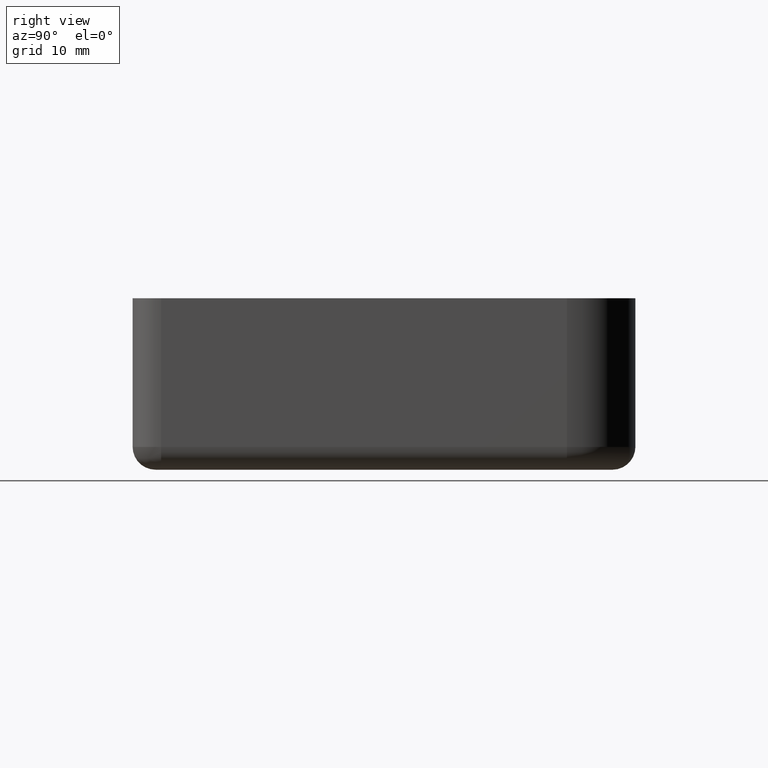
[diagram: clean part render]
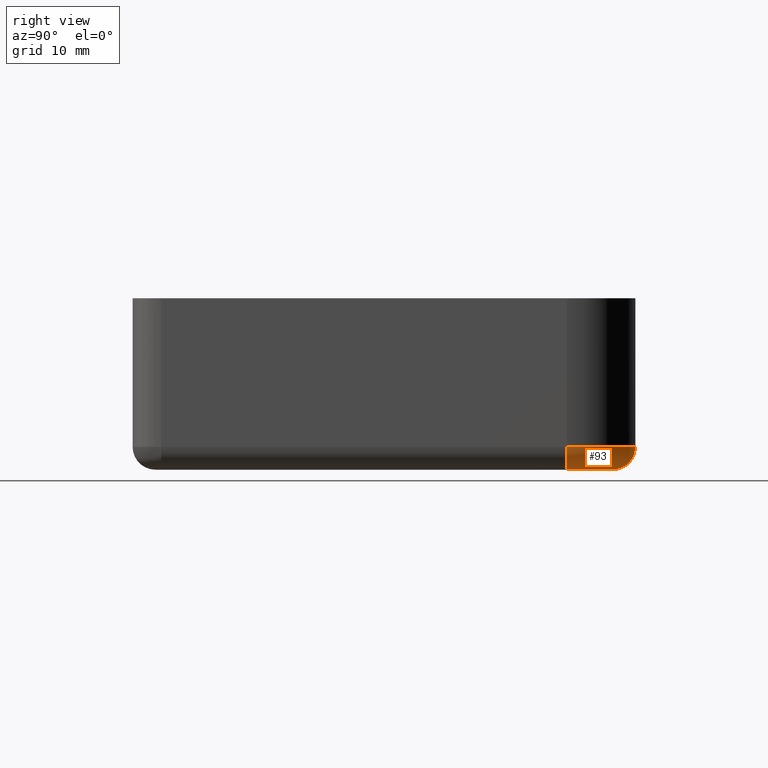
[diagram: same view with one face highlighted and labeled with its STEP entity id]
A machine part, right view. The second image highlights one B-rep face of the part: STEP entity #93.
In plain terms, the highlighted toroidal blend (fillet) surface has major radius 4 mm and minor (blend) radius 2 mm.
Its self-contained STEP definition (entity closure, byte-faithful):
#93 = ADVANCED_FACE( '', ( #152 ), #153, .T. );
#152 = FACE_OUTER_BOUND( '', #231, .T. );
#153 = TOROIDAL_SURFACE( '', #232, 4.00000000000000, 2.00000000000000 );
#231 = EDGE_LOOP( '', ( #523, #524, #525, #526 ) );
#232 = AXIS2_PLACEMENT_3D( '', #527, #528, #529 );
#523 = ORIENTED_EDGE( '', *, *, #735, .T. );
#524 = ORIENTED_EDGE( '', *, *, #702, .F. );
#525 = ORIENTED_EDGE( '', *, *, #734, .F. );
#526 = ORIENTED_EDGE( '', *, *, #721, .F. );
#527 = CARTESIAN_POINT( '', ( -4.00000000000000, -4.00000000000000, -13.0000000000000 ) );
#528 = DIRECTION( '', ( 0.000000000000000, 0.000000000000000, 1.00000000000000 ) );
#529 = DIRECTION( '', ( -1.00000000000000, 1.22460635382238E-016, 0.000000000000000 ) );
#702 = EDGE_CURVE( '', #834, #837, #838, .T. );
#721 = EDGE_CURVE( '', #865, #866, #867, .F. );
#734 = EDGE_CURVE( '', #866, #834, #890, .T. );
#735 = EDGE_CURVE( '', #865, #837, #891, .T. );
#834 = VERTEX_POINT( '', #1013 );
#837 = VERTEX_POINT( '', #1018 );
#838 = CIRCLE( '', #1019, 6.00000000000000 );
#865 = VERTEX_POINT( '', #1060 );
#866 = VERTEX_POINT( '', #1061 );
#867 = CIRCLE( '', #1062, 4.00000000000000 );
#890 = CIRCLE( '', #1091, 2.00000000000000 );
#891 = CIRCLE( '', #1092, 2.00000000000000 );
#1013 = CARTESIAN_POINT( '', ( 2.00000000000000, -4.00000000000001, -13.0000000000000 ) );
#1018 = CARTESIAN_POINT( '', ( -4.00000000000000, 2.00000000000000, -13.0000000000000 ) );
#1019 = AXIS2_PLACEMENT_3D( '', #1202, #1203, #1204 );
#1060 = CARTESIAN_POINT( '', ( -4.00000000000000, 3.95928949348257E-015, -15.0000000000000 ) );
#1061 = CARTESIAN_POINT( '', ( -9.18251477459443E-016, -4.00000000000001, -15.0000000000000 ) );
#1062 = AXIS2_PLACEMENT_3D( '', #1231, #1232, #1233 );
#1091 = AXIS2_PLACEMENT_3D( '', #1258, #1259, #1260 );
#1092 = AXIS2_PLACEMENT_3D( '', #1261, #1262, #1263 );
#1202 = CARTESIAN_POINT( '', ( -4.00000000000000, -4.00000000000000, -13.0000000000000 ) );
#1203 = DIRECTION( '', ( 0.000000000000000, 0.000000000000000, 1.00000000000000 ) );
#1204 = DIRECTION( '', ( -1.00000000000000, 1.22460635382238E-016, 0.000000000000000 ) );
#1231 = CARTESIAN_POINT( '', ( -4.00000000000000, -4.00000000000000, -15.0000000000000 ) );
#1232 = DIRECTION( '', ( 0.000000000000000, 0.000000000000000, 1.00000000000000 ) );
#1233 = DIRECTION( '', ( -1.00000000000000, 1.22460635382238E-016, 0.000000000000000 ) );
#1258 = CARTESIAN_POINT( '', ( -9.18251477459443E-016, -4.00000000000001, -13.0000000000000 ) );
#1259 = DIRECTION( '', ( -1.22460635382238E-016, -1.00000000000000, 0.000000000000000 ) );
#1260 = DIRECTION( '', ( 0.000000000000000, 0.000000000000000, 1.00000000000000 ) );
#1261 = CARTESIAN_POINT( '', ( -4.00000000000000, 2.22456601750576E-015, -13.0000000000000 ) );
#1262 = DIRECTION( '', ( 1.00000000000000, -1.22460635382238E-016, 0.000000000000000 ) );
#1263 = DIRECTION( '', ( 0.000000000000000, 0.000000000000000, 1.00000000000000 ) );